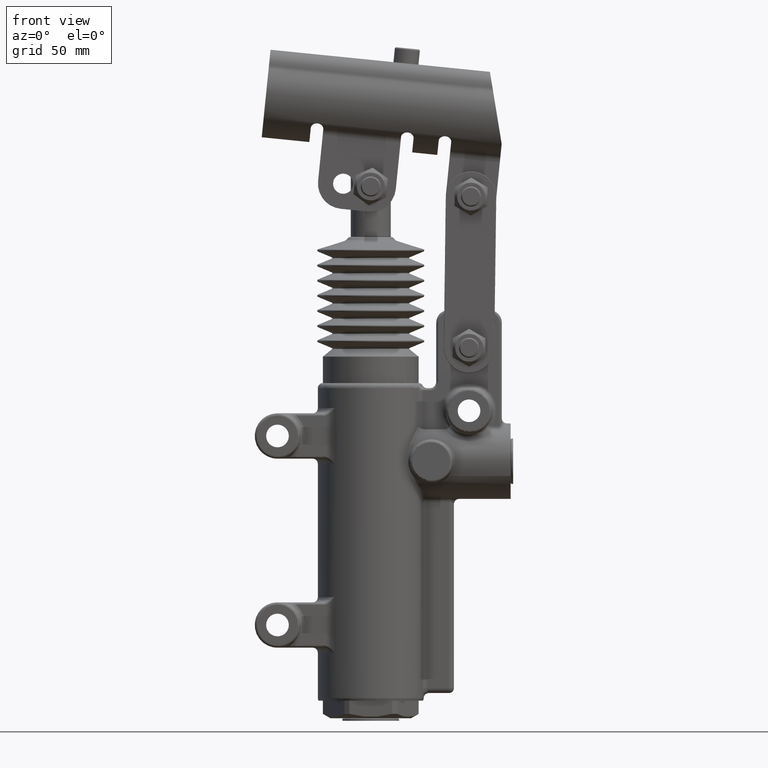
[diagram: clean part render]
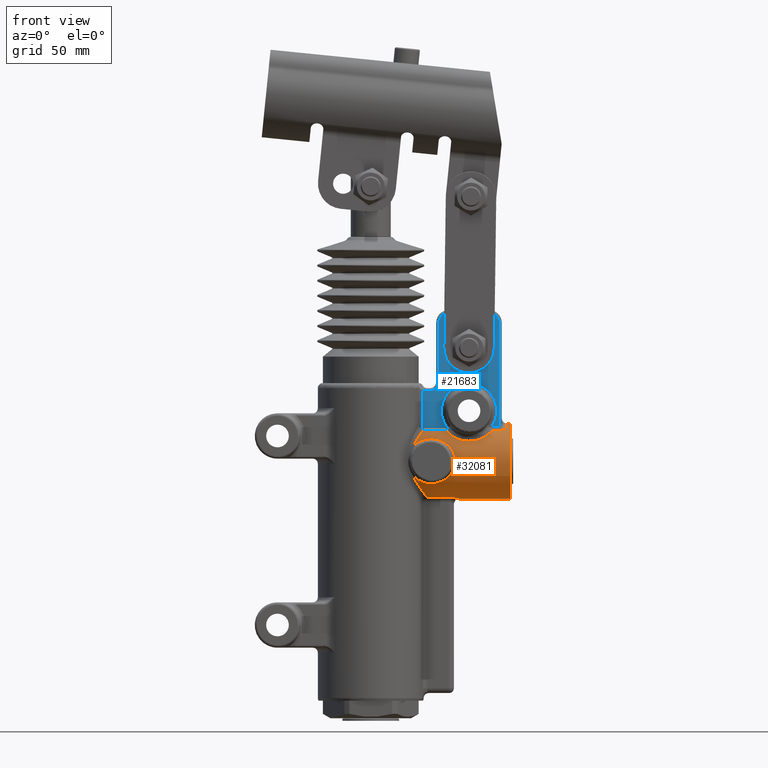
[diagram: same view with the hole feature highlighted: cylindrical wall and planar end face, labeled with their STEP entity ids]
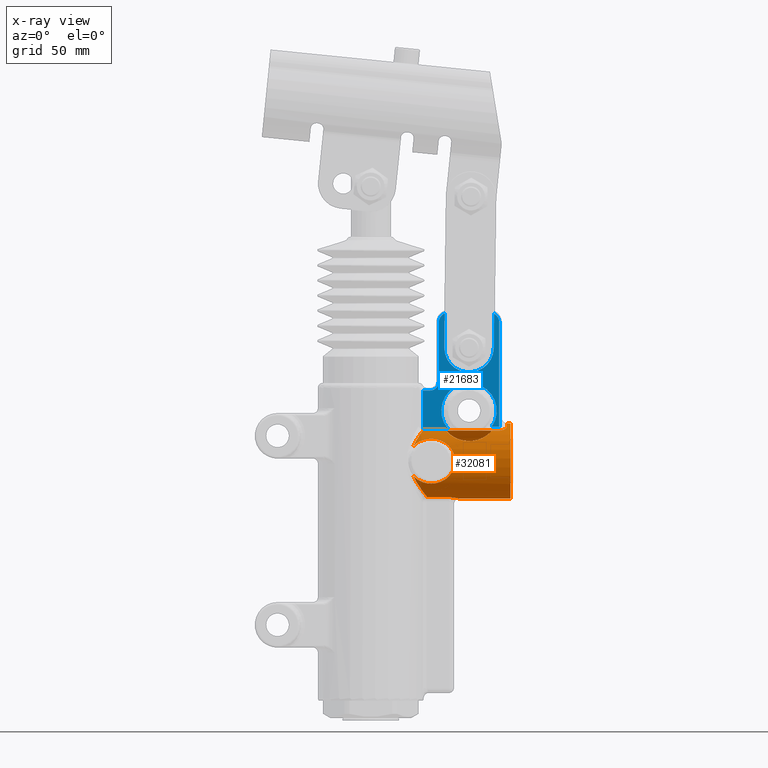
[diagram: x-ray of the same camera — body ghosted, the hole faces saturated]
A machine part, front view. The highlighted faces form one hole feature of diameter 30 mm: the cylindrical wall (entity #32081, orange) and its adjacent planar end face (entity #21683, blue) — they share a circular edge in the B-rep.
The next image is the same camera in x-ray (body ghosted, the hole faces saturated) — the bore reads through the body.
Wall:
#17010=CARTESIAN_POINT('',(55.500000000000007,15.0,96.000000000000014));
#17011=VERTEX_POINT('',#17010);
#17012=CARTESIAN_POINT('',(55.500000000000007,0.0,96.000000000000014));
#17013=DIRECTION('',(1.0,0.0,0.0));
#17014=DIRECTION('',(0.0,-1.0,0.0));
#17015=AXIS2_PLACEMENT_3D('',#17012,#17013,#17014);
#17016=CIRCLE('',#17015,15.0);
#17017=EDGE_CURVE('',#17011,#17011,#17016,.T.);
#21621=CARTESIAN_POINT('',(21.137539039885176,-7.999999973064367,108.68857755743214));
#21622=VERTEX_POINT('',#21621);
#21630=CARTESIAN_POINT('',(29.54378724797877,-7.999999999999991,108.68857754044953));
#21631=VERTEX_POINT('',#21630);
#21632=CARTESIAN_POINT('',(29.543787247978766,-7.999999999999994,108.68857754044953));
#21633=DIRECTION('',(-1.0,0.0,0.0));
#21634=VECTOR('',#21633,8.40624820809359);
#21635=LINE('',#21632,#21634);
#21636=EDGE_CURVE('',#21631,#21622,#21635,.T.);
#30772=CARTESIAN_POINT('',(22.449944321022389,-4.411764705132101,81.663461638646865));
#30773=VERTEX_POINT('',#30772);
#30791=CARTESIAN_POINT('',(30.999999999999996,-4.411764705882343,81.663461638877735));
#30792=VERTEX_POINT('',#30791);
#30800=CARTESIAN_POINT('',(30.999999999999993,-4.411764705882343,81.663461638877735));
#30801=DIRECTION('',(-1.0,0.0,0.0));
#30802=VECTOR('',#30801,8.550055678977607);
#30803=LINE('',#30800,#30802);
#30804=EDGE_CURVE('',#30792,#30773,#30803,.T.);
#30837=CARTESIAN_POINT('',(33.445159253795474,11.910491217205211,86.881875249544038));
#30838=VERTEX_POINT('',#30837);
#30846=CARTESIAN_POINT('',(35.0,7.058823529411765,82.764705882352956));
#30847=VERTEX_POINT('',#30846);
#30848=CARTESIAN_POINT('',(33.445159253795531,11.910491217205221,86.881875249544066));
#30849=CARTESIAN_POINT('',(33.941583719654609,11.197909159472362,85.95106956609024));
#30850=CARTESIAN_POINT('',(34.700809479887674,9.733141786739694,84.431552905344972));
#30851=CARTESIAN_POINT('',(34.999999999999993,7.886964703144209,83.20638117501025));
#30852=CARTESIAN_POINT('',(34.999999999999993,7.058823529411766,82.764705882352956));
#30853=B_SPLINE_CURVE_WITH_KNOTS('',3,(#30848,#30849,#30850,#30851,#30852),.UNSPECIFIED.,.F.,.U.,(4,1,4),(-0.744590930871438,-0.319110398944902,0.0),.UNSPECIFIED.);
#30854=EDGE_CURVE('',#30838,#30847,#30853,.T.);
#30881=CARTESIAN_POINT('',(35.0,-0.882352941176461,81.025974045461368));
#30882=VERTEX_POINT('',#30881);
#30900=CARTESIAN_POINT('',(35.0,0.0,96.000000000000014));
#30901=DIRECTION('',(-1.0,-3.178289E-017,1.255661E-016));
#30902=DIRECTION('',(-1.295260E-016,0.245378440022267,-0.969427367662085));
#30903=AXIS2_PLACEMENT_3D('',#30900,#30901,#30902);
#30904=CIRCLE('',#30903,15.0);
#30905=EDGE_CURVE('',#30847,#30882,#30904,.T.);
#30942=CARTESIAN_POINT('',(35.0,-0.88235294117646,81.025974045461368));
#30943=CARTESIAN_POINT('',(35.0,-1.410756920931731,81.057110548568943));
#30944=CARTESIAN_POINT('',(34.722131185432879,-2.462466581659236,81.177236081307569));
#30945=CARTESIAN_POINT('',(33.400185267396871,-3.939468781283079,81.506300810813016));
#30946=CARTESIAN_POINT('',(31.899844939808947,-4.411764705882345,81.663461638877735));
#30947=CARTESIAN_POINT('',(31.000000000000007,-4.411764705882347,81.663461638877735));
#30948=B_SPLINE_CURVE_WITH_KNOTS('',3,(#30942,#30943,#30944,#30945,#30946,#30947),.UNSPECIFIED.,.F.,.U.,(4,1,1,4),(-0.629891457866264,-0.449922469904475,-0.269953481942685,-7.616139E-016),.UNSPECIFIED.);
#30949=EDGE_CURVE('',#30882,#30792,#30948,.T.);
#31450=CARTESIAN_POINT('',(26.645751313720005,8.823529412074658,108.13034742759883));
#31451=VERTEX_POINT('',#31450);
#31498=CARTESIAN_POINT('',(26.645751101245093,8.823428053080708,108.13020765715585));
#31499=CARTESIAN_POINT('',(26.806124176352242,8.860790037533754,108.10286962823693));
#31500=CARTESIAN_POINT('',(26.964934266328406,8.900950763194814,108.07322192112728));
#31501=CARTESIAN_POINT('',(27.121905419616134,8.943526325551,108.04143069812665));
#31502=CARTESIAN_POINT('',(28.512797700856932,9.320780488563727,107.75973456634287));
#31503=CARTESIAN_POINT('',(29.796654857270095,9.897618496629612,107.302145941237));
#31504=CARTESIAN_POINT('',(30.95641142535133,10.496908868965733,106.71770612518239));
#31505=CARTESIAN_POINT('',(31.196999266210689,10.621229765864546,106.59646592932866));
#31506=CARTESIAN_POINT('',(31.432215218621906,10.746521789262983,106.46977277410787));
#31507=CARTESIAN_POINT('',(31.661867747864139,10.872241341108014,106.33762387155829));
#31508=CARTESIAN_POINT('',(32.812698980301512,11.502245231196593,105.67540131782381));
#31509=CARTESIAN_POINT('',(33.856834150009448,12.1560936401325,104.86001238188264));
#31510=CARTESIAN_POINT('',(34.755655241280628,12.747087574002144,103.9071016647172));
#31511=CARTESIAN_POINT('',(34.968387806407847,12.886963748190388,103.68156719165191));
#31512=CARTESIAN_POINT('',(35.173095974263035,13.023336016286205,103.44847025933205));
#31513=CARTESIAN_POINT('',(35.368593685032792,13.154981183130612,103.20866139121728));
#31514=CARTESIAN_POINT('',(36.162457293803747,13.689556789243138,102.2348620934798));
#31515=CARTESIAN_POINT('',(36.829984186444975,14.164692664725024,101.11044559825557));
#31516=CARTESIAN_POINT('',(37.285377789149251,14.488762029104636,99.896262920016312));
#31517=CARTESIAN_POINT('',(37.36565720339383,14.545890848202038,99.682219785426526));
#31518=CARTESIAN_POINT('',(37.43948161896347,14.59841320169058,99.465455003117825));
#31519=CARTESIAN_POINT('',(37.506754986347126,14.646194695798908,99.246826097196276));
#31520=CARTESIAN_POINT('',(37.825893413964252,14.872865538837953,98.209671455158883));
#31521=CARTESIAN_POINT('',(37.997921798572534,14.998180045310816,97.098276646776057));
#31522=CARTESIAN_POINT('',(37.999212334161555,15.000646521735053,96.000004563519994));
#31523=CARTESIAN_POINT('',(37.99957693814379,15.001343354223843,95.689719145170244));
#31524=CARTESIAN_POINT('',(37.986790301957583,14.992360083116157,95.378494999846382));
#31525=CARTESIAN_POINT('',(37.960325056984061,14.973211261071862,95.068803245599938));
#31526=CARTESIAN_POINT('',(37.930084091050269,14.95133053124324,94.714928652732411));
#31527=CARTESIAN_POINT('',(37.881972958054448,14.916169767471164,94.363064745322745));
#31528=CARTESIAN_POINT('',(37.817667725400803,14.869172775122783,94.016246574819718));
#31529=CARTESIAN_POINT('',(37.584800031928516,14.698983184685426,92.760318494218197));
#31530=CARTESIAN_POINT('',(37.125918798218613,14.367859353119794,91.540775009940688));
#31531=CARTESIAN_POINT('',(36.509442645107654,13.937634650022506,90.455131803796064));
#31532=CARTESIAN_POINT('',(36.44687405413449,13.893969451719528,90.344945602163961));
#31533=CARTESIAN_POINT('',(36.382706660861352,13.849299507889016,90.236122925139171));
#31534=CARTESIAN_POINT('',(36.317011683579395,13.803706986571706,90.12868207937899));
#31535=CARTESIAN_POINT('',(35.55693099803068,13.276208594875417,88.885608178145489));
#31536=CARTESIAN_POINT('',(34.572143648959496,12.606287636864241,87.790754802315831));
#31537=CARTESIAN_POINT('',(33.445159253795438,11.910491217205216,86.881875249544066));
#31538=B_SPLINE_CURVE_WITH_KNOTS('',3,(#31498,#31499,#31500,#31501,#31502,#31503,#31504,#31505,#31506,#31507,#31508,#31509,#31510,#31511,#31512,#31513,#31514,#31515,#31516,#31517,#31518,#31519,#31520,#31521,#31522,#31523,#31524,#31525,#31526,#31527,#31528,#31529,#31530,#31531,#31532,#31533,#31534,#31535,#31536,#31537),.UNSPECIFIED.,.F.,.U.,(4,3,3,3,3,3,3,3,3,3,3,3,3,4),(-11.391845695949845,-11.34140760281884,-10.894485012603679,-10.801772331364864,-10.337171965043197,-10.227210562661249,-9.780686890456934,-9.701971118785943,-9.328551018429097,-9.223051831273292,-9.102501376213688,-8.665953598399611,-8.621646646358633,-8.109022091556776),.UNSPECIFIED.);
#31539=EDGE_CURVE('',#31451,#30838,#31538,.T.);
#31887=CARTESIAN_POINT('',(51.000000000000007,8.823529411764708,108.13034742782429));
#31888=VERTEX_POINT('',#31887);
#31889=CARTESIAN_POINT('',(51.0,8.823529411764708,108.13034742782429));
#31890=DIRECTION('',(-1.0,0.0,0.0));
#31891=VECTOR('',#31890,24.354248686279998);
#31892=LINE('',#31889,#31891);
#31893=EDGE_CURVE('',#31888,#31451,#31892,.T.);
#31931=CARTESIAN_POINT('',(56.5,0.0,96.000000000000014));
#31932=DIRECTION('',(-1.0,0.0,0.0));
#31933=DIRECTION('',(0.0,-1.0,0.0));
#31934=AXIS2_PLACEMENT_3D('',#31931,#31932,#31933);
#31935=CYLINDRICAL_SURFACE('',#31934,15.0);
#31936=ORIENTED_EDGE('',*,*,#30854,.F.);
#31937=ORIENTED_EDGE('',*,*,#31539,.F.);
#31938=ORIENTED_EDGE('',*,*,#31893,.F.);
#31939=CARTESIAN_POINT('',(54.0,6.176470589546321,109.66935298602203));
#31940=VERTEX_POINT('',#31939);
#31941=CARTESIAN_POINT('',(54.0,6.176470589546319,109.66935298602206));
#31942=CARTESIAN_POINT('',(53.999999999674593,6.756207960911214,109.40739978110024));
#31943=CARTESIAN_POINT('',(53.639439548736057,7.688360517340158,108.90472077059385));
#31944=CARTESIAN_POINT('',(52.438072197972765,8.60496755659079,108.29233114506204));
#31945=CARTESIAN_POINT('',(51.480663340993367,8.823529411764712,108.13034742782429));
#31946=CARTESIAN_POINT('',(51.000000000000014,8.823529411764712,108.13034742782429));
#31947=B_SPLINE_CURVE_WITH_KNOTS('',3,(#31941,#31942,#31943,#31944,#31945,#31946),.UNSPECIFIED.,.F.,.U.,(4,1,1,4),(0.0,0.216298503446729,0.360497505744548,0.504696508042368),.UNSPECIFIED.);
#31948=EDGE_CURVE('',#31940,#31888,#31947,.T.);
#31949=ORIENTED_EDGE('',*,*,#31948,.F.);
#31950=CARTESIAN_POINT('',(54.0,-6.17647058823529,109.66935298661443));
#31951=VERTEX_POINT('',#31950);
#31952=CARTESIAN_POINT('',(54.0,0.0,96.000000000000014));
#31953=DIRECTION('',(-1.0,0.0,0.0));
#31954=DIRECTION('',(0.0,0.0,1.0));
#31955=AXIS2_PLACEMENT_3D('',#31952,#31953,#31954);
#31956=CIRCLE('',#31955,15.0);
#31957=EDGE_CURVE('',#31951,#31940,#31956,.T.);
#31958=ORIENTED_EDGE('',*,*,#31957,.F.);
#31959=CARTESIAN_POINT('',(51.000000000000007,-8.823529411764705,108.13034742782429));
#31960=VERTEX_POINT('',#31959);
#31961=CARTESIAN_POINT('',(51.000000000000007,-8.823529411764692,108.13034742782429));
#31962=CARTESIAN_POINT('',(51.480722726578129,-8.823529411764692,108.13034742782429));
#31963=CARTESIAN_POINT('',(52.197843896202592,-8.662609292581662,108.24972573915197));
#31964=CARTESIAN_POINT('',(53.139460328284827,-8.101103190350356,108.63077434326269));
#31965=CARTESIAN_POINT('',(53.808607647001253,-7.319750051369027,109.11174180523153));
#31966=CARTESIAN_POINT('',(54.0,-6.563009919899042,109.49469594062583));
#31967=CARTESIAN_POINT('',(54.0,-6.176470588235292,109.66935298661441));
#31968=B_SPLINE_CURVE_WITH_KNOTS('',3,(#31961,#31962,#31963,#31964,#31965,#31966,#31967),.UNSPECIFIED.,.F.,.U.,(4,1,1,1,4),(0.0,0.144216817973478,0.216325226960217,0.360542044933694,0.504758862907172),.UNSPECIFIED.);
#31969=EDGE_CURVE('',#31960,#31951,#31968,.T.);
#31970=ORIENTED_EDGE('',*,*,#31969,.F.);
#31971=CARTESIAN_POINT('',(48.050363716155353,-8.823529411764708,108.13034742782429));
#31972=VERTEX_POINT('',#31971);
#31973=CARTESIAN_POINT('',(48.050363716155346,-8.823529411764703,108.13034742782429));
#31974=DIRECTION('',(1.0,0.0,0.0));
#31975=VECTOR('',#31974,2.949636283844654);
#31976=LINE('',#31973,#31975);
#31977=EDGE_CURVE('',#31972,#31960,#31976,.T.);
#31978=ORIENTED_EDGE('',*,*,#31977,.F.);
#31979=CARTESIAN_POINT('',(29.54378724797877,-7.999999999999989,108.68857754044953));
#31980=CARTESIAN_POINT('',(29.867092315963077,-8.761357614044057,108.20855045365153));
#31981=CARTESIAN_POINT('',(30.295578749310181,-9.459899293253599,107.6679381029338));
#31982=CARTESIAN_POINT('',(30.849226119669826,-10.056904377251515,107.12942298954367));
#31983=CARTESIAN_POINT('',(30.909097479649915,-10.12146443516485,107.07118803001057));
#31984=CARTESIAN_POINT('',(30.970565267962517,-10.185002926386233,107.01283530641633));
#31985=CARTESIAN_POINT('',(31.033660763429985,-10.247448859162221,106.95445491156335));
#31986=CARTESIAN_POINT('',(31.582055851245094,-10.790198266781037,106.44704116475162));
#31987=CARTESIAN_POINT('',(32.25532192893391,-11.249027575730198,105.93779925984902));
#31988=CARTESIAN_POINT('',(33.023762007277746,-11.608619909258103,105.4987595519631));
#31989=CARTESIAN_POINT('',(33.160550067277114,-11.672630024139071,105.42060721244192));
#31990=CARTESIAN_POINT('',(33.300878128009657,-11.733854435756708,105.34427258185087));
#31991=CARTESIAN_POINT('',(33.444608564525154,-11.792192528200475,105.27016797801045));
#31992=CARTESIAN_POINT('',(34.22080391114936,-12.107238923268678,104.86997682811321));
#31993=CARTESIAN_POINT('',(35.097261795680133,-12.337035790683604,104.53590986349992));
#31994=CARTESIAN_POINT('',(36.009059087384003,-12.48839765775508,104.30743908275913));
#31995=CARTESIAN_POINT('',(36.216559330432901,-12.522843498394696,104.25544535239314));
#31996=CARTESIAN_POINT('',(36.427331060748365,-12.553556067230058,104.20843350543373));
#31997=CARTESIAN_POINT('',(36.640571585867143,-12.580535605294871,104.16697722144238));
#31998=CARTESIAN_POINT('',(37.594543788450174,-12.701233719961518,103.98151461986555));
#31999=CARTESIAN_POINT('',(38.598268630726288,-12.745836139055788,103.90938631295727));
#32000=CARTESIAN_POINT('',(39.577149957030784,-12.716963766065657,103.95453255128521));
#32001=CARTESIAN_POINT('',(39.776083820583054,-12.711096157240661,103.96370742813093));
#32002=CARTESIAN_POINT('',(39.975199064299815,-12.702207522178064,103.97770427662527));
#32003=CARTESIAN_POINT('',(40.173934969303687,-12.690289594210507,103.99660437591871));
#32004=CARTESIAN_POINT('',(41.189793917829306,-12.629369883836628,104.09321417068571));
#32005=CARTESIAN_POINT('',(42.195120896369247,-12.488099816609459,104.31962988539075));
#32006=CARTESIAN_POINT('',(43.109086822810816,-12.258592987251847,104.64376526856817));
#32007=CARTESIAN_POINT('',(43.255681291458139,-12.221781514605812,104.69575457461561));
#32008=CARTESIAN_POINT('',(43.400753992714471,-12.182586125834325,104.75042661436365));
#32009=CARTESIAN_POINT('',(43.543913416133442,-12.140943073884095,104.80768749124925));
#32010=CARTESIAN_POINT('',(44.454321475394892,-11.876118242920805,105.17183232050337));
#32011=CARTESIAN_POINT('',(45.285530259072715,-11.510150951679353,105.64260458705621));
#32012=CARTESIAN_POINT('',(45.979597928409916,-11.048567646777162,106.14527008168324));
#32013=CARTESIAN_POINT('',(46.073709805748173,-10.985979410368126,106.21342884409569));
#32014=CARTESIAN_POINT('',(46.165749726830619,-10.921461014911859,106.28238241332504));
#32015=CARTESIAN_POINT('',(46.255604861795319,-10.85499644842521,106.35197232883102));
#32016=CARTESIAN_POINT('',(47.00819694663015,-10.298314777650566,106.93483072211831));
#32017=CARTESIAN_POINT('',(47.606038653569733,-9.603722604148796,107.56284038642917));
#32018=CARTESIAN_POINT('',(48.050363716155353,-8.823529411764712,108.13034742782429));
#32019=B_SPLINE_CURVE_WITH_KNOTS('',3,(#31979,#31980,#31981,#31982,#31983,#31984,#31985,#31986,#31987,#31988,#31989,#31990,#31991,#31992,#31993,#31994,#31995,#31996,#31997,#31998,#31999,#32000,#32001,#32002,#32003,#32004,#32005,#32006,#32007,#32008,#32009,#32010,#32011,#32012,#32013,#32014,#32015,#32016,#32017,#32018),.UNSPECIFIED.,.F.,.U.,(4,3,3,3,3,3,3,3,3,3,3,3,3,4),(-11.52594172473983,-11.206080931906349,-11.171491224275641,-10.870854457528612,-10.817338872843804,-10.528335730494458,-10.462566482411562,-10.168335193959599,-10.108539828150869,-9.80288968689443,-9.753865299055468,-9.44209959950855,-9.399825832021216,-9.045756998675039),.UNSPECIFIED.);
#32020=EDGE_CURVE('',#21631,#31972,#32019,.T.);
#32021=ORIENTED_EDGE('',*,*,#32020,.F.);
#32022=ORIENTED_EDGE('',*,*,#21636,.T.);
#32023=CARTESIAN_POINT('',(16.864145832241455,-13.799745710447473,101.8793722732097));
#32024=VERTEX_POINT('',#32023);
#32025=CARTESIAN_POINT('',(16.863023424961376,-13.799499603139338,101.87976651347515));
#32026=CARTESIAN_POINT('',(17.460155795987447,-13.229829248012708,103.22418951954543));
#32027=CARTESIAN_POINT('',(18.976897207488324,-11.649746654087643,105.79193329513124));
#32028=CARTESIAN_POINT('',(20.471493620403173,-9.370102128996054,107.82474414704659));
#32029=CARTESIAN_POINT('',(21.137539028684973,-7.999999969168331,108.6885775598885));
#32030=B_SPLINE_CURVE_WITH_KNOTS('',3,(#32025,#32026,#32027,#32028,#32029),.UNSPECIFIED.,.F.,.U.,(4,1,4),(15.722005423286074,16.24772897454298,16.83043646673687),.UNSPECIFIED.);
#32031=EDGE_CURVE('',#32024,#21622,#32030,.T.);
#32032=ORIENTED_EDGE('',*,*,#32031,.F.);
#32033=CARTESIAN_POINT('',(24.000000000000021,-12.069743615234751,87.093750000000014));
#32034=VERTEX_POINT('',#32033);
#32035=CARTESIAN_POINT('',(24.000000033795317,-12.066375292715792,87.091149641838896));
#32036=CARTESIAN_POINT('',(24.000473005744738,-12.066375272205914,87.0911496490085));
#32037=CARTESIAN_POINT('',(24.00094597918979,-12.066375278895352,87.091149690905468));
#32038=CARTESIAN_POINT('',(24.001418954125047,-12.066375312789365,87.091149767532571));
#32039=CARTESIAN_POINT('',(25.455486814732367,-12.066479513229318,87.091385342449271));
#32040=CARTESIAN_POINT('',(28.330717435588628,-12.579234981315121,87.743879547514894));
#32041=CARTESIAN_POINT('',(31.628085753268103,-13.98111891385099,90.222405939538092));
#32042=CARTESIAN_POINT('',(33.575245134914503,-15.039535271546931,93.879159366520469));
#32043=CARTESIAN_POINT('',(33.579451955014562,-15.039703552287452,97.650414107730157));
#32044=CARTESIAN_POINT('',(31.94375251965409,-14.156093813876362,101.41555127568886));
#32045=CARTESIAN_POINT('',(29.150675730948649,-12.843579888318741,103.84373651649886));
#32046=CARTESIAN_POINT('',(25.482362316207396,-12.046748806527168,104.93855439771183));
#32047=CARTESIAN_POINT('',(22.517920198969371,-12.046218760135712,104.94043237331158));
#32048=CARTESIAN_POINT('',(19.441803522367135,-12.71018277144951,104.01991067998247));
#32049=CARTESIAN_POINT('',(17.689468950131001,-13.423949887213222,102.76101304469903));
#32050=CARTESIAN_POINT('',(16.863823750766404,-13.799952875645129,101.87974443922275));
#32051=B_SPLINE_CURVE_WITH_KNOTS('',3,(#32035,#32036,#32037,#32038,#32039,#32040,#32041,#32042,#32043,#32044,#32045,#32046,#32047,#32048,#32049,#32050),.UNSPECIFIED.,.F.,.U.,(4,3,1,1,1,1,1,1,1,1,1,4),(-5.263892732632647,-5.263770433787575,-4.887786831374178,-4.511803228960779,-4.13581962654738,-3.759836024133981,-3.509180289191717,-3.007868819307185,-2.75721308436492,-2.506557349422654,-2.255901614480389,-1.917659874748192),.UNSPECIFIED.);
#32052=EDGE_CURVE('',#32034,#32024,#32051,.T.);
#32053=ORIENTED_EDGE('',*,*,#32052,.F.);
#32054=CARTESIAN_POINT('',(16.864145832241569,-13.799745710447402,90.120627726790175));
#32055=VERTEX_POINT('',#32054);
#32056=CARTESIAN_POINT('',(16.86775024069626,-13.802070212685653,90.122838455274064));
#32057=CARTESIAN_POINT('',(17.694927746040477,-13.423890878574269,89.235745843187289));
#32058=CARTESIAN_POINT('',(19.809843777508299,-12.557658987779273,87.718606830558514));
#32059=CARTESIAN_POINT('',(22.547191239383263,-12.06888712633025,87.094415829474144));
#32060=CARTESIAN_POINT('',(23.999999949725826,-12.068824094242812,87.094437755099833));
#32061=B_SPLINE_CURVE_WITH_KNOTS('',3,(#32056,#32057,#32058,#32059,#32060),.UNSPECIFIED.,.F.,.U.,(4,1,4),(-5.97903622594411,-5.639754036200973,-5.263892732632647),.UNSPECIFIED.);
#32062=EDGE_CURVE('',#32055,#32034,#32061,.T.);
#32063=ORIENTED_EDGE('',*,*,#32062,.F.);
#32064=CARTESIAN_POINT('',(22.44994432084227,-4.411764705095451,81.663461638635582));
#32065=CARTESIAN_POINT('',(22.043461500804327,-6.022150001364601,82.159023456461227));
#32066=CARTESIAN_POINT('',(20.82217613339747,-8.982444772889034,83.668108492040687));
#32067=CARTESIAN_POINT('',(18.640468876241563,-12.011391415663727,86.717220777421488));
#32068=CARTESIAN_POINT('',(17.329568389221457,-13.355989418724864,89.07705051070667));
#32069=CARTESIAN_POINT('',(16.863944632840404,-13.799792648300691,90.120517982696668));
#32070=B_SPLINE_CURVE_WITH_KNOTS('',3,(#32064,#32065,#32066,#32067,#32068,#32069),.UNSPECIFIED.,.F.,.U.,(4,1,1,4),(12.751483575920728,13.33419115549734,13.91689873507395,14.325585078774981),.UNSPECIFIED.);
#32071=EDGE_CURVE('',#30773,#32055,#32070,.T.);
#32072=ORIENTED_EDGE('',*,*,#32071,.F.);
#32073=ORIENTED_EDGE('',*,*,#30804,.F.);
#32074=ORIENTED_EDGE('',*,*,#30949,.F.);
#32075=ORIENTED_EDGE('',*,*,#30905,.F.);
#32076=EDGE_LOOP('',(#31936,#31937,#31938,#31949,#31958,#31970,#31978,#32021,#32022,#32032,#32053,#32063,#32072,#32073,#32074,#32075));
#32077=FACE_OUTER_BOUND('',#32076,.T.);
#32078=ORIENTED_EDGE('',*,*,#17017,.F.);
#32079=EDGE_LOOP('',(#32078));
#32080=FACE_BOUND('',#32079,.T.);
#32081=ADVANCED_FACE('',(#32077,#32080),#31935,.T.);
End face:
#21378=CARTESIAN_POINT('',(29.381013861733724,-7.999999999999996,154.65771566474234));
#21379=VERTEX_POINT('',#21378);
#21386=CARTESIAN_POINT('',(29.200868891587092,-8.000000000000062,141.13049720354945));
#21387=VERTEX_POINT('',#21386);
#21388=CARTESIAN_POINT('',(29.381013861733724,-7.999999999999996,154.65771566474234));
#21389=DIRECTION('',(-0.013316041178514,0.0,-0.999911337593155));
#21390=VECTOR('',#21389,13.528417923286774);
#21391=LINE('',#21388,#21390);
#21392=EDGE_CURVE('',#21379,#21387,#21391,.T.);
#21447=CARTESIAN_POINT('',(48.799131108412929,-8.000000000000103,140.86950279645058));
#21448=VERTEX_POINT('',#21447);
#21458=CARTESIAN_POINT('',(39.000000000000021,-8.000000000000021,141.0));
#21459=DIRECTION('',(0.0,-1.0,0.0));
#21460=DIRECTION('',(0.0,0.0,-1.0));
#21461=AXIS2_PLACEMENT_3D('',#21458,#21459,#21460);
#21462=CIRCLE('',#21461,9.799999999999992);
#21463=EDGE_CURVE('',#21387,#21448,#21462,.T.);
#21476=CARTESIAN_POINT('',(48.980323693967676,-7.999999999999994,154.47538747006863));
#21477=VERTEX_POINT('',#21476);
#21478=CARTESIAN_POINT('',(48.799131108412929,-7.999999999999994,140.86950279645058));
#21479=DIRECTION('',(0.013316041178514,0.0,0.999911337593155));
#21480=VECTOR('',#21479,13.607091111066119);
#21481=LINE('',#21478,#21480);
#21482=EDGE_CURVE('',#21448,#21477,#21481,.T.);
#21571=CARTESIAN_POINT('',(16.0,-7.999999999999998,125.0));
#21572=DIRECTION('',(0.0,-1.0,0.0));
#21573=DIRECTION('',(0.0,0.0,-1.0));
#21574=AXIS2_PLACEMENT_3D('',#21571,#21572,#21573);
#21575=PLANE('',#21574);
#21576=ORIENTED_EDGE('',*,*,#21482,.F.);
#21577=ORIENTED_EDGE('',*,*,#21463,.F.);
#21578=ORIENTED_EDGE('',*,*,#21392,.F.);
#21579=CARTESIAN_POINT('',(27.000000000000007,-7.999999999999997,150.99999999999997));
#21580=VERTEX_POINT('',#21579);
#21581=CARTESIAN_POINT('',(31.0,-7.999999999999996,150.99999999999997));
#21582=DIRECTION('',(-5.551115E-017,1.0,5.551115E-017));
#21583=DIRECTION('',(-0.707106781186548,-7.850462E-017,0.707106781186547));
#21584=AXIS2_PLACEMENT_3D('',#21581,#21582,#21583);
#21585=CIRCLE('',#21584,3.999999999999999);
#21586=EDGE_CURVE('',#21580,#21379,#21585,.T.);
#21587=ORIENTED_EDGE('',*,*,#21586,.F.);
#21588=CARTESIAN_POINT('',(27.0,-7.999999999999997,127.5));
#21589=VERTEX_POINT('',#21588);
#21590=CARTESIAN_POINT('',(27.000000000000007,-7.999999999999997,127.5));
#21591=DIRECTION('',(0.0,0.0,1.0));
#21592=VECTOR('',#21591,23.499999999999972);
#21593=LINE('',#21590,#21592);
#21594=EDGE_CURVE('',#21589,#21580,#21593,.T.);
#21595=ORIENTED_EDGE('',*,*,#21594,.F.);
#21596=CARTESIAN_POINT('',(23.499999999999996,-7.999999999999997,124.0));
#21597=VERTEX_POINT('',#21596);
#21598=CARTESIAN_POINT('',(23.5,-7.999999999999997,127.5));
#21599=DIRECTION('',(5.551115E-017,-1.0,-5.551115E-017));
#21600=DIRECTION('',(0.707106781186548,7.850462E-017,-0.707106781186547));
#21601=AXIS2_PLACEMENT_3D('',#21598,#21599,#21600);
#21602=CIRCLE('',#21601,3.5);
#21603=EDGE_CURVE('',#21597,#21589,#21602,.T.);
#21604=ORIENTED_EDGE('',*,*,#21603,.F.);
#21605=CARTESIAN_POINT('',(20.712315177207987,-7.999999999999998,123.99999999999999));
#21606=VERTEX_POINT('',#21605);
#21607=CARTESIAN_POINT('',(20.712315177207987,-7.999999999999998,123.99999999999999));
#21608=DIRECTION('',(1.0,0.0,0.0));
#21609=VECTOR('',#21608,2.787684822792009);
#21610=LINE('',#21607,#21609);
#21611=EDGE_CURVE('',#21606,#21597,#21610,.T.);
#21612=ORIENTED_EDGE('',*,*,#21611,.F.);
#21613=CARTESIAN_POINT('',(20.712315177207987,-7.999999999999998,108.7379268108225));
#21614=VERTEX_POINT('',#21613);
#21615=CARTESIAN_POINT('',(20.712315177207987,-7.999999999999998,108.7379268108225));
#21616=DIRECTION('',(0.0,0.0,1.0));
#21617=VECTOR('',#21616,15.262073189177485);
#21618=LINE('',#21615,#21617);
#21619=EDGE_CURVE('',#21614,#21606,#21618,.T.);
#21620=ORIENTED_EDGE('',*,*,#21619,.F.);
#21621=CARTESIAN_POINT('',(21.137539039885176,-7.999999973064367,108.68857755743214));
#21622=VERTEX_POINT('',#21621);
#21623=CARTESIAN_POINT('',(20.712315177207991,-7.999999999999995,108.73792681082251));
#21624=CARTESIAN_POINT('',(20.850999581945345,-7.999999999999995,108.70454791812229));
#21625=CARTESIAN_POINT('',(20.993700278726468,-7.999999999999995,108.68857754044953));
#21626=CARTESIAN_POINT('',(21.137539013696834,-7.999999999999995,108.68857754044953));
#21627=B_SPLINE_CURVE_WITH_KNOTS('',3,(#21623,#21624,#21625,#21626),.UNSPECIFIED.,.F.,.U.,(4,4),(0.244471561848874,0.287755301788101),.UNSPECIFIED.);
#21628=EDGE_CURVE('',#21614,#21622,#21627,.T.);
#21629=ORIENTED_EDGE('',*,*,#21628,.T.);
#21630=CARTESIAN_POINT('',(29.54378724797877,-7.999999999999991,108.68857754044953));
#21631=VERTEX_POINT('',#21630);
#21632=CARTESIAN_POINT('',(29.543787247978766,-7.999999999999994,108.68857754044953));
#21633=DIRECTION('',(-1.0,0.0,0.0));
#21634=VECTOR('',#21633,8.40624820809359);
#21635=LINE('',#21632,#21634);
#21636=EDGE_CURVE('',#21631,#21622,#21635,.T.);
#21637=ORIENTED_EDGE('',*,*,#21636,.F.);
#21638=CARTESIAN_POINT('',(30.521828840840804,-7.999999999999997,108.99139002397762));
#21639=VERTEX_POINT('',#21638);
#21640=CARTESIAN_POINT('',(29.543787247978777,-7.999999999999998,108.68857754044953));
#21641=CARTESIAN_POINT('',(29.772888011179937,-7.999999999999998,108.68857754044953));
#21642=CARTESIAN_POINT('',(29.998866221467946,-7.999999999906016,108.73035729815156));
#21643=CARTESIAN_POINT('',(30.320834792304595,-7.999999999906016,108.86467928203713));
#21644=CARTESIAN_POINT('',(30.425057203954307,-7.999999999999997,108.92259169371884));
#21645=CARTESIAN_POINT('',(30.521828840840797,-7.999999999999997,108.99139002397762));
#21646=B_SPLINE_CURVE_WITH_KNOTS('',3,(#21640,#21641,#21642,#21643,#21644,#21645),.UNSPECIFIED.,.F.,.U.,(4,2,4),(0.0,0.068730228960348,0.104752828502122),.UNSPECIFIED.);
#21647=EDGE_CURVE('',#21631,#21639,#21646,.T.);
#21648=ORIENTED_EDGE('',*,*,#21647,.T.);
#21649=CARTESIAN_POINT('',(48.05036371615536,-7.999999999999995,109.74772708486753));
#21650=VERTEX_POINT('',#21649);
#21651=CARTESIAN_POINT('',(39.000000000000028,-7.999999999999996,116.00000000000001));
#21652=DIRECTION('',(8.990820E-019,-1.0,-9.950367E-018));
#21653=DIRECTION('',(-0.089990060611693,-9.990904E-018,0.995942663505838));
#21654=AXIS2_PLACEMENT_3D('',#21651,#21652,#21653);
#21655=CIRCLE('',#21654,11.0);
#21656=EDGE_CURVE('',#21650,#21639,#21655,.T.);
#21657=ORIENTED_EDGE('',*,*,#21656,.F.);
#21658=CARTESIAN_POINT('',(51.000000000000007,-7.999999999999995,109.74772708486753));
#21659=VERTEX_POINT('',#21658);
#21660=CARTESIAN_POINT('',(51.0,-7.999999999999995,109.74772708486753));
#21661=DIRECTION('',(-1.0,0.0,0.0));
#21662=VECTOR('',#21661,2.94963628384464);
#21663=LINE('',#21660,#21662);
#21664=EDGE_CURVE('',#21659,#21650,#21663,.T.);
#21665=ORIENTED_EDGE('',*,*,#21664,.F.);
#21666=CARTESIAN_POINT('',(51.000000000000007,-7.999999999999995,150.99999999999997));
#21667=VERTEX_POINT('',#21666);
#21668=CARTESIAN_POINT('',(51.000000000000007,-7.999999999999994,150.99999999999997));
#21669=DIRECTION('',(0.0,0.0,-1.0));
#21670=VECTOR('',#21669,41.252272915132437);
#21671=LINE('',#21668,#21670);
#21672=EDGE_CURVE('',#21667,#21659,#21671,.T.);
#21673=ORIENTED_EDGE('',*,*,#21672,.F.);
#21674=CARTESIAN_POINT('',(47.000000000000014,-7.999999999999995,150.99999999999997));
#21675=DIRECTION('',(-5.551115E-017,1.0,-5.551115E-017));
#21676=DIRECTION('',(0.707106781186548,7.850462E-017,0.707106781186547));
#21677=AXIS2_PLACEMENT_3D('',#21674,#21675,#21676);
#21678=CIRCLE('',#21677,4.0);
#21679=EDGE_CURVE('',#21477,#21667,#21678,.T.);
#21680=ORIENTED_EDGE('',*,*,#21679,.F.);
#21681=EDGE_LOOP('',(#21576,#21577,#21578,#21587,#21595,#21604,#21612,#21620,#21629,#21637,#21648,#21657,#21665,#21673,#21680));
#21682=FACE_OUTER_BOUND('',#21681,.T.);
#21683=ADVANCED_FACE('',(#21682),#21575,.T.);